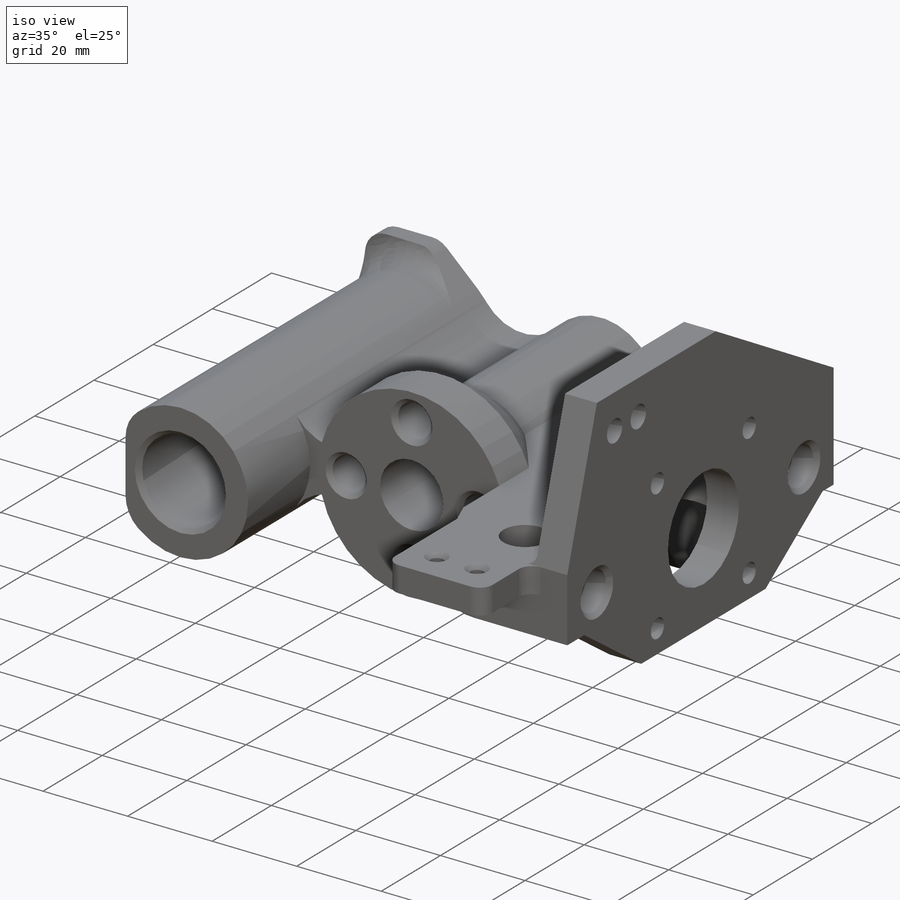
[diagram: iso view]
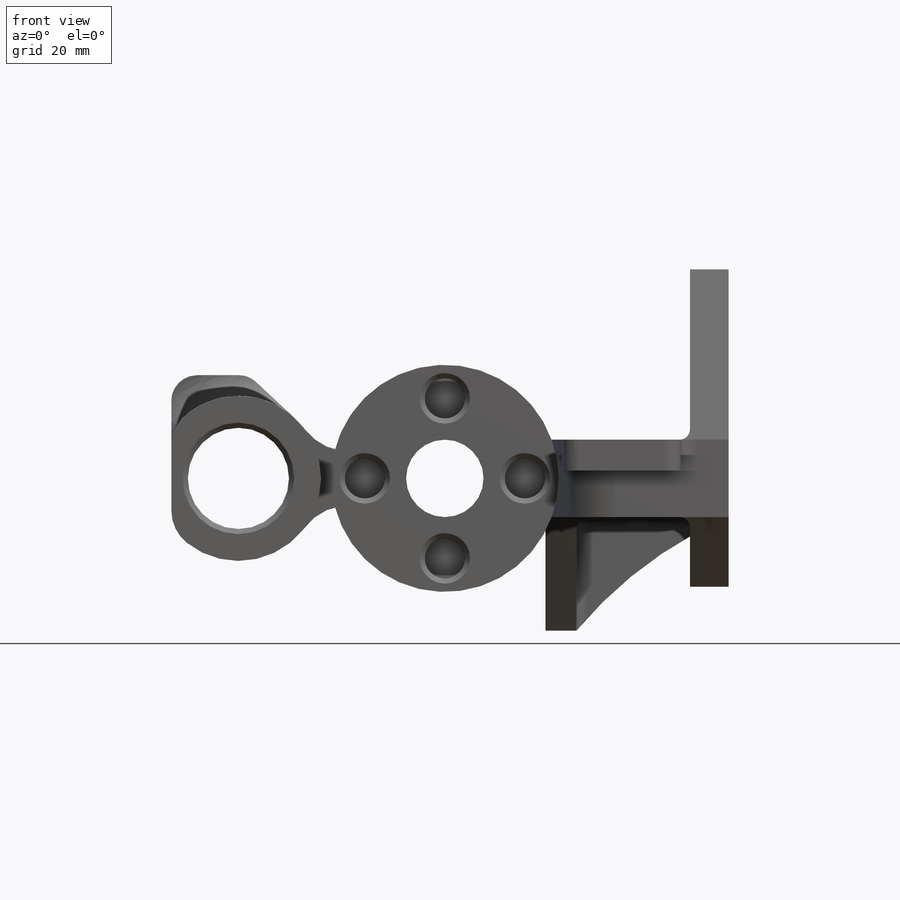
[diagram: front view]
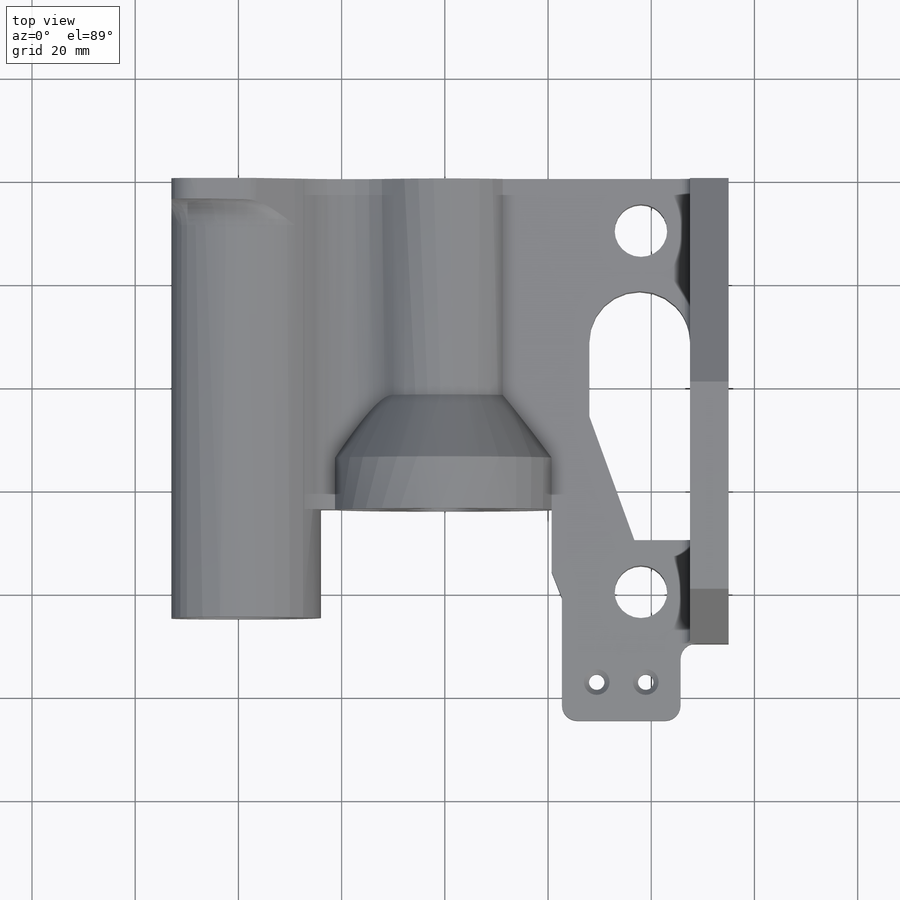
[diagram: top view]
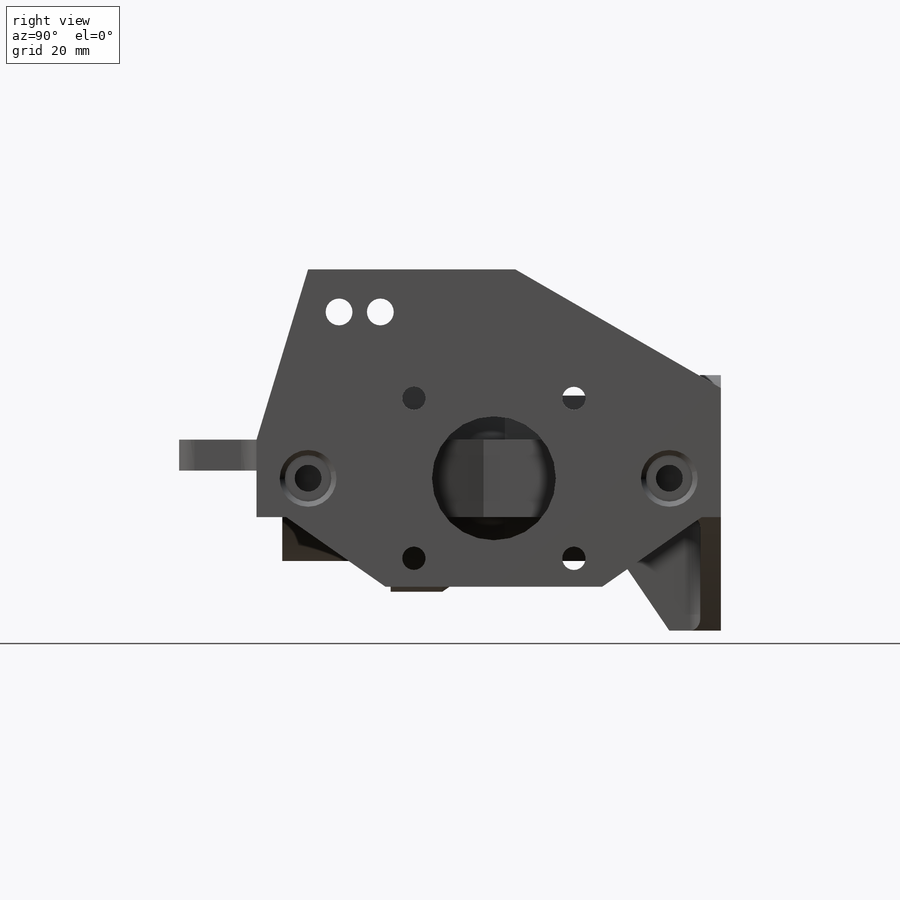
[diagram: right view]
SOLIDWORKS PART (.sldprt)
format: sldprt  version: not decoded by parser v0  size: 741,376 bytes
history: native  units: mm
features: sketch x16, extrude x8, cut_extrude x7, chamfer x6, fillet x5, material x1, revolve x1, plane x1 (+11 scaffold rows collapsed)
feature tree (56):
  scaffold x11  (default folders/planes/origin — collapsed)
  material  "Material <not specified>"
  sketch  "Sketch1"  dims[D2=19.6mm D3=15.0mm D4=27.0mm D5=32.0mm D10=11.0mm D12=8.0mm D1=40.0mm D6=55.0mm D7=42.0mm D8=15.0mm D9=7.5mm D11=13.0mm]
  extrude  "Boss-Extrude1"  Depth=90mm
  sketch  "Sketch2"  dims[c1.D4=10.2mm c1.D1=17.5mm c1.D2=70.0mm c1.D3=10.0mm c2.D1=38.0mm c2.D5=20.0mm c2.D6=20.0mm c2.D7=27.0mm c2.D8=~16.547398mm c3.D8=20.0deg c3.D9=24.0mm]
  cut_extrude  "Cut-Extrude1"  [1 undecoded]
  sketch  "Sketch3"  dims[c1.D1=4.5mm c1.D2=24.0mm c1.D12=5.2mm c1.D3=31.0mm c1.D4=31.0mm c1.D5=44.0mm c1.D6=21.0mm c1.D7=42.0mm c1.D8=20.0mm c2.D8=35.0deg c2.D9=~24.403086mm c3.D9=35.0deg c3.D10=20.0mm c4.D10=35.0deg c4.D11=20.0mm c5.D11=35.0deg c5.D13=10.0mm c5.D14=70.0mm]
  cut_extrude  "Cut-Extrude2"  Depth=17mm
  sketch  "Sketch4"  dims[D1=23.0mm]
  cut_extrude  "Cut-Extrude3"  Depth=26mm
  sketch  "Sketch5"  dims[c1.D1=10.0mm c1.D2=18.0mm c1.D3=44.0mm c1.D4=14.1288mm c2.D4=35.0deg]
  revolve  "Revolve1"  Angle=360deg
  sketch  "Sketch6"  dims[c1.D1=7.8mm c1.D2=15.5mm c1.D3=~10.765809mm c2.D3=120.0deg c2.D4=~13.187257mm c3.D4=120.0deg]
  cut_extrude  "Cut-Extrude4"  Depth=10mm
  sketch  "Sketch9"
  cut_extrude  "Cut-Extrude6"  Depth=5mm
  chamfer  "Chamfer1"  Distance=1mm Angle=45deg
  fillet  "Fillet1"  Radius=10mm
  sketch  "Sketch10"  dims[D1=9.0mm]
  cut_extrude  "Cut-Extrude7"  Depth=5.8mm
  chamfer  "Chamfer2"  Distance=1mm Angle=45deg
  plane  "Plane1"  Offset=2.5mm
  sketch  "Sketch13"  dims[c1.D7=3.1mm c1.D1=22.0mm c1.D2=~12.263105mm c2.D2=~37.23569deg c3.D2=10.0mm c3.D3=~21.601606mm c4.D3=~232.76431deg c5.D3=~21.601606mm c6.D3=45.0deg c6.D4=7.5mm c6.D5=5.2mm c6.D6=9.5mm c7.D4=7.0mm c7.D3=25.0mm]
  extrude  "Boss-Extrude2"  Depth=6mm
  chamfer  "Chamfer3"  Distance=1mm Angle=45deg
  sketch  "Sketch18"  dims[c1.D1=80.0mm c1.D6=5.2mm c2.D1=~21.537885mm c3.D1=40.0deg c3.D2=21.0mm c3.D3=38.0mm c3.D4=16.5mm c3.D5=8.0mm c3.D7=6.0mm c3.D8=8.25mm]
  extrude  "Boss-Extrude5"  Depth=4mm
  sketch  "Sketch26"  dims[D1=11.5mm]
  extrude  "Boss-Extrude8"  [1 undecoded]
  sketch  "Sketch28"  dims[D1=5.0mm D2=10.5mm]
  extrude  "Boss-Extrude9"  [1 undecoded]
  chamfer  "Chamfer9"  Distance=1mm Angle=60deg
  sketch  "Sketch29"
  cut_extrude  "Cut-Extrude16"  Depth=30mm
  fillet  "Fillet3"  Radius=2mm
  sketch  "Sketch30"  dims[D3=3.0mm D6=3.0mm D1=9.5mm D2=7.5mm D4=23.0mm D5=15.0mm D7=2.0mm]
  extrude  "Boss-Extrude10"  Depth=6mm
  fillet  "Fillet4"  Radius=3mm
  chamfer  "Chamfer10"  Distance=1mm Angle=45deg
  sketch  "Sketch32"  dims[c1.D9=5.2mm c1.D1=22.0mm c1.D2=5.0mm c1.D3=19.5mm c1.D4=19.5mm c2.D4=30.0deg c2.D5=80.0mm c2.D6=10.0mm c2.D7=8.0mm c2.D8=6.0mm c2.D10=8.25mm]
  extrude  "Boss-Extrude11"  [1 undecoded]
  chamfer  "Chamfer11"  Distance=1mm Angle=45deg
  fillet  "Fillet5"  Radius=2mm
  sketch  "Sketch33"  dims[D3=5.0mm D1=20.0mm D2=15.0mm]
  extrude  "Boss-Extrude12"  Depth=4mm
  fillet  "Fillet6"  Radius=5mm
decode coverage: 37 of 43 modeling features carry decoded parameters
note: ~ marks probable driven/reference dimensions
note: 4 parameter values undecoded
summary: no parameter record found for 4 features
note: suppression state not decoded; provenance and decode notes live in map.json
